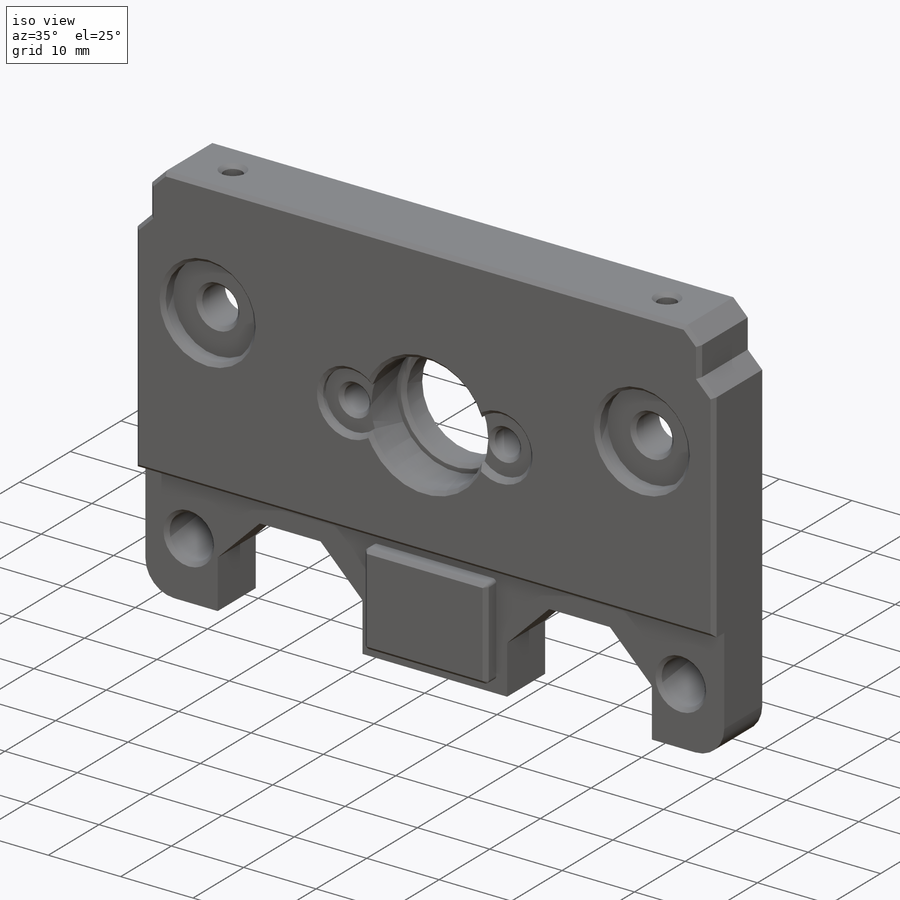
[diagram: iso view]
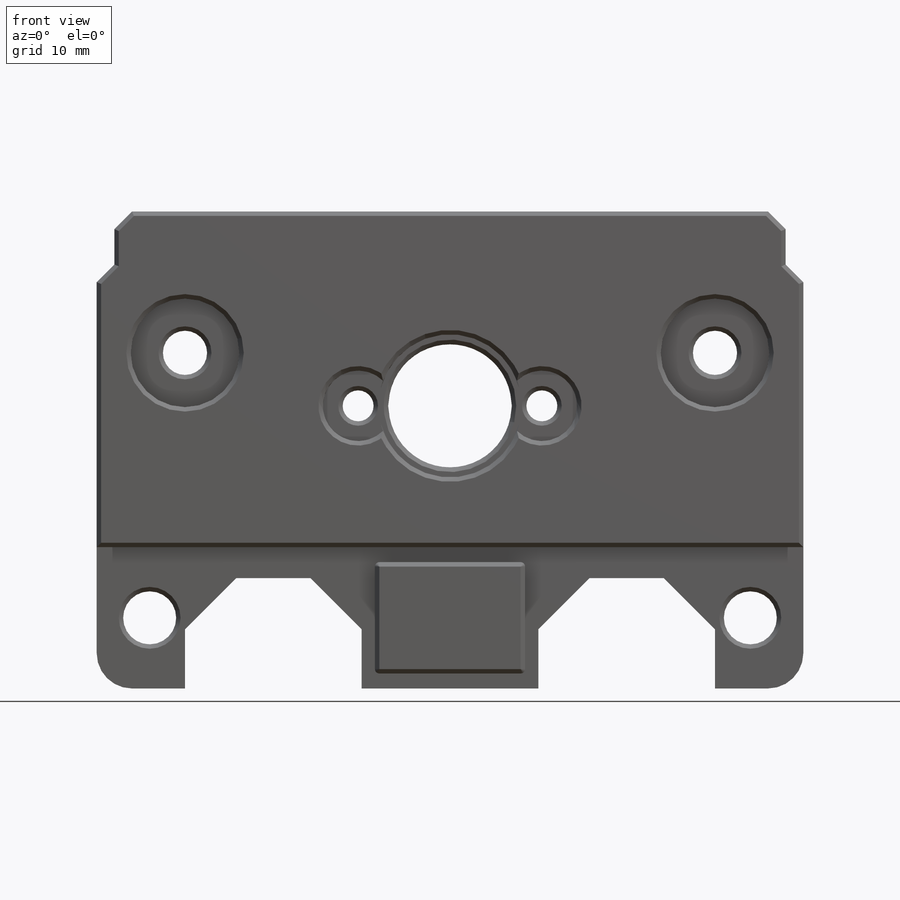
[diagram: front view]
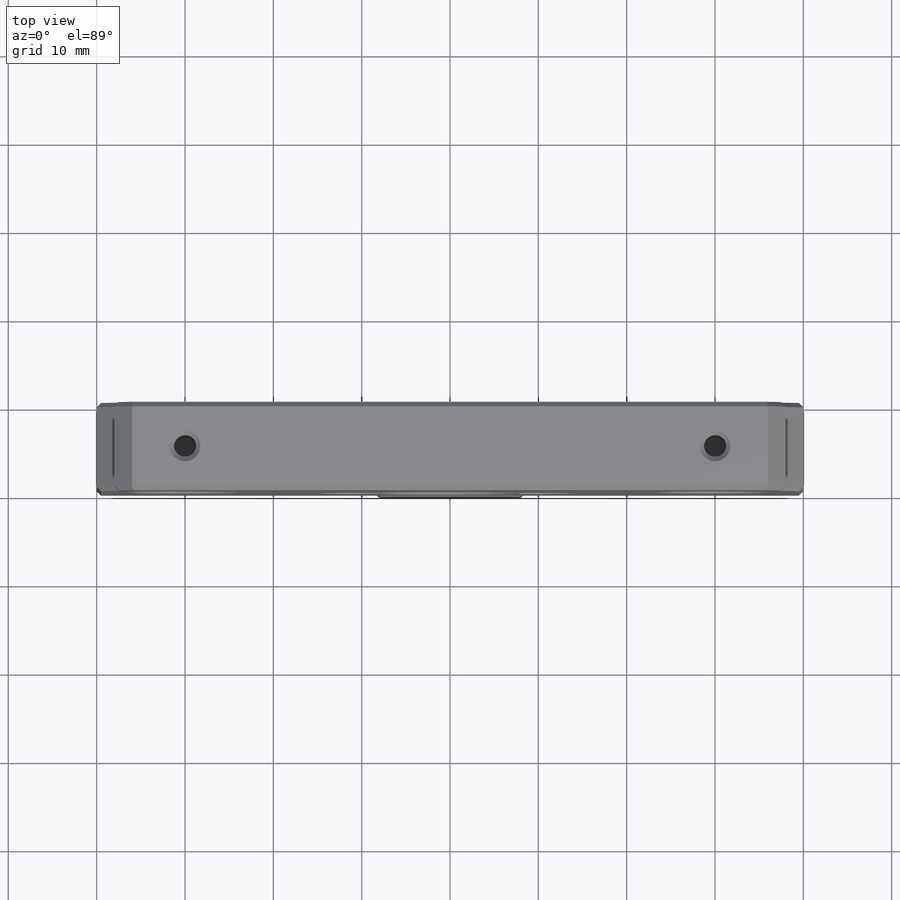
[diagram: top view]
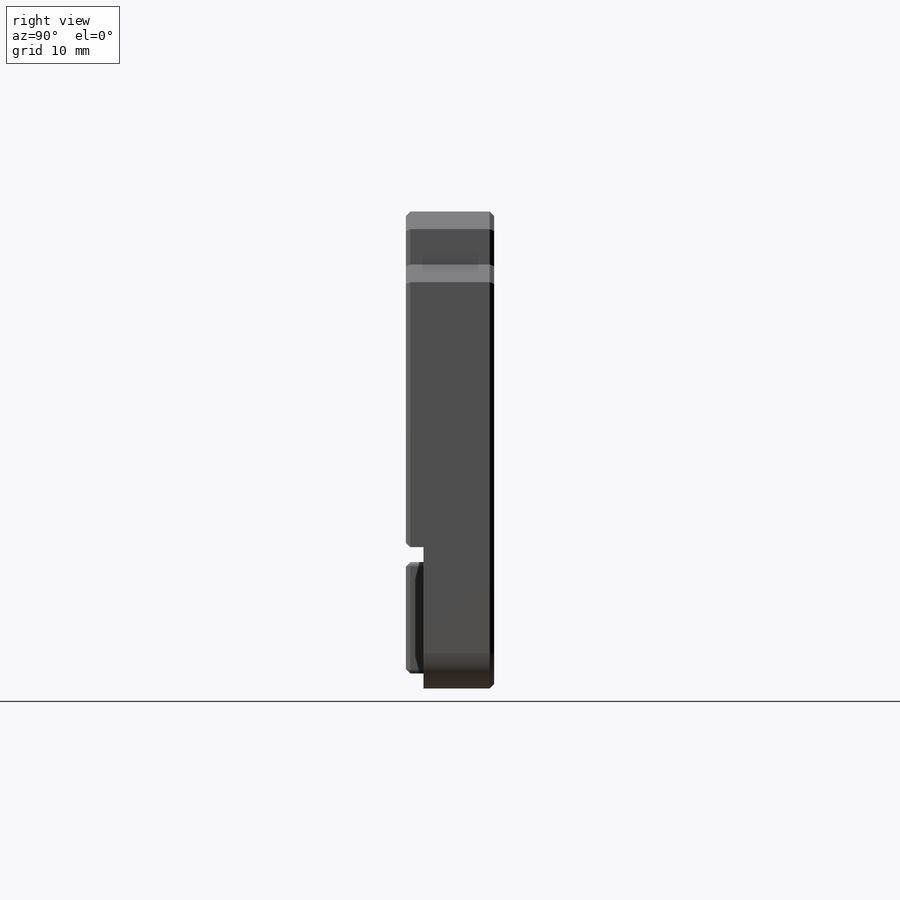
[diagram: right view]
SOLIDWORKS PART (.sldprt)
format: sldprt  version: not decoded by parser v0  size: 613,376 bytes
history: native  units: mm
features: sketch x10, cut_extrude x4, extrude x3, chamfer x3, material x1, fillet x1 (+13 scaffold rows collapsed; 1 parser-record rows omitted)
feature tree (36):
  scaffold x13  (default folders/planes/origin — collapsed)
  material  "6061 Alloy"
  sketch  "Sketch1"  dims[c1.D1=4.0mm c1.D4=16.2mm c1.D5=5.0mm c1.D6=5.0mm c1.D2=16.0mm c1.D3=80.0mm c2.D6=60.0mm c2.D7=10.0mm c2.D8=6.0mm c2.D9=16.0mm c3.D7=22.0mm c3.D10=12.5mm c3.D11=20.0mm c3.D12=10.0mm c3.D13=5.0mm c4.D13=45.0deg c4.D14=5.8mm c4.D15=76.0mm c4.D16=2.0mm c5.D16=45.0deg c5.D17=6.0mm c5.D18=76.0mm]
  extrude  "Boss-Extrude1"  Depth=8mm
  sketch  "Sketch2"  dims[c1.D3=4.0mm c1.D8=12.3mm c1.D9=14.0mm c1.D1=1.7mm c1.D2=1.7mm c1.D4=1.0mm c1.D5=14.5mm c1.D6=2.0mm c1.D7=17.0mm c2.D5=1.7mm c2.D9=12.3mm c2.D6=1.7mm]
  extrude  "Boss-Extrude2"  Depth=2mm
  sketch  "Sketch3"  dims[c1.D1=~5.532108mm c1.D2=~5.532108mm c1.D3=6.0mm c2.D1=8.0mm c2.D2=6.0mm]
  cut_extrude  "Cut-Extrude1"  [1 undecoded]
  chamfer  "Chamfer1"  Distance=2mm Angle=45deg
  sketch  "Sketch4"  dims[D1=14.0mm]
  extrude  "Boss-Extrude3"  Depth=4mm
  sketch  "Sketch5"  dims[D1=7.6mm D2=3.5mm D4=8.0mm D3=1.5mm]
  cut_extrude  "Cut-Extrude2"  Depth=1mm
  sketch  "Sketch6"  dims[D1=3.5mm]
  cut_extrude  "Cut-Extrude3"  [1 undecoded]
  sketch  "Sketch7"  dims[D1=2.5mm D2=60.0mm]
  cut_extrude  "Cut-Extrude4"  Depth=15mm _TNextInd=39 _TElemType=0mm _TCompTag=0mm _TID1=0mm _TAttDefEntBased2=0mm _TElemTag=0mm _TID2=0mm _TSegmType=0mm _TAttDefNameBased2=0mm
  parser-record x1  (decoder bookkeeping rows leaked as tree rows — omitted from the tree; the rows remain in map.json)
  sketch  "Sketch_MAC1-1_LINEAR-002_MILLING"
  sketch  "Stock_LINEAR-002_MILLING"
  sketch  "Sketch8"  dims[c1.D1=4.0mm c1.D2=4.0mm c1.D3=4.0mm c1._TElemType=0.0mm c1._TElemTag=0.0mm c1._TID1=0.0mm c1._TID2=0.0mm c1._TSegmType=0.0mm c2._TElemType=0.0mm c2._TElemTag=0.0mm c2._TID1=0.0mm c2._TID2=0.0mm c2._TSegmType=0.0mm c3._TElemType=0.0mm c3._TElemTag=0.0mm c3._TID1=0.0mm c3._TID2=0.0mm c3._TSegmType=0.0mm c4._TElemType=0.0mm c4._TElemTag=0.0mm c4._TID1=0.0mm c4._TID2=0.0mm c4._TSegmType=0.0mm c5._TElemType=0.0mm c5._TElemTag=0.0mm c5._TID1=0.0mm c5._TID2=0.0mm c5._TSegmType=0.0mm c6._TElemType=0.0mm c6._TElemTag=0.0mm c6._TID1=0.0mm c6._TID2=0.0mm c6._TSegmType=0.0mm c7._TElemType=0.0mm c7._TElemTag=0.0mm c7._TID1=0.0mm c7._TID2=0.0mm c7._TSegmType=0.0mm c8._TElemType=0.0mm c8._TElemTag=0.0mm c8._TID1=0.0mm c8._TID2=0.0mm c8._TSegmType=0.0mm c9._TElemType=0.0mm c9._TElemTag=0.0mm c9._TID1=0.0mm c9._TID2=0.0mm c9._TSegmType=0.0mm c10._TElemType=0.0mm c10._TElemTag=0.0mm c10._TID1=0.0mm c10._TID2=0.0mm c10._TSegmType=0.0mm c11._TElemType=0.0mm c11._TVElType=0.0mm c11._TDbl1=-0.04 c11._TDbl2=-0.016 c11._TDbl3=0.01 c11._TDbl4=0.04 c11._TDbl5=-0.016 c11._TDbl6=0.01 c11._TDbl7=0.0 c11._TDbl8=0.0 c11._TDbl9=0.0 c11._TBool=0.0mm c11._TInt=0.0mm c11._TAttDefVEl=0.0mm c12._TElemType=0.0mm c12._TVElType=0.0mm c12._TDbl1=0.0 c12._TDbl2=0.0 c12._TDbl3=0.0 c12._TDbl4=0.0 c12._TDbl5=0.0 c12._TDbl6=0.0 c12._TDbl7=0.0 c12._TDbl8=0.0 c12._TDbl9=0.0 c12._TBool=0.0mm c12._TInt=0.0mm c13._TElemType=0.0mm c13._TID1=0.0mm c13._TCompTag=47480832000.0mm c14._TElemType=0.0mm c14._TID1=0.0mm c14._TCompTag=47480832000.0mm c15._TElemType=0.0mm c15._TElemTag=0.0mm c15._TID1=0.0mm c15._TID2=0.0mm c15._TSegmType=0.0mm c16._TElemType=0.0mm c16._TElemTag=0.0mm c16._TID1=0.0mm c16._TID2=0.0mm c16._TSegmType=0.0mm c17._TElemType=0.0mm c17._TElemTag=0.0mm c17._TID1=0.0mm c17._TID2=0.0mm c17._TSegmType=0.0mm c18._TElemType=0.0mm c18._TElemTag=0.0mm c18._TID1=0.0mm c18._TID2=0.0mm c18._TSegmType=0.0mm c19._TElemType=0.0mm c19._TID1=0.0mm c19._TCompTag=42786816000.0mm c20._TElemType=0.0mm c20._TID1=0.0mm c20._TCompTag=42786816000.0mm c21._TElemType=0.0mm c21._TID1=0.0mm c21._TCompTag=42786816000.0mm c22._TElemType=0.0mm c22._TID1=0.0mm c22._TCompTag=42786816000.0mm c23._TElemType=0.0mm c23._TID1=0.0mm c23._TCompTag=47480832000.0mm c24._TElemType=0.0mm c24._TID1=0.0mm c24._TCompTag=42786816000.0mm c25._TElemType=0.0mm c25._TID1=0.0mm c25._TCompTag=47480832000.0mm c26._TElemType=0.0mm c26._TID1=0.0mm c26._TCompTag=42786816000.0mm c27._TElemType=0.0mm c27._TID1=0.0mm c27._TCompTag=0.0mm c28._TElemType=0.0mm c28._TID1=0.0mm c28._TCompTag=78102528000.0mm c29._TElemType=0.0mm c29._TID1=0.0mm c29._TCompTag=42786816000.0mm c30._TElemType=0.0mm c30._TID1=0.0mm c30._TCompTag=78102528000.0mm c31._TElemType=0.0mm c31._TID1=0.0mm c31._TCompTag=78102528000.0mm c32._TElemType=0.0mm c32._TID1=0.0mm c32._TCompTag=42786816000.0mm c33._TElemType=0.0mm c33._TID1=0.0mm c33._TCompTag=78102528000.0mm c34._TElemType=0.0mm c34._TID1=0.0mm c34._TCompTag=78102528000.0mm c35._TElemType=0.0mm c35._TID1=0.0mm c35._TCompTag=42786816000.0mm c36._TElemType=0.0mm c36._TID1=0.0mm c36._TCompTag=78102528000.0mm c37._TElemType=0.0mm c37._TID1=0.0mm c37._TCompTag=78102528000.0mm c38._TElemType=0.0mm c38._TID1=0.0mm c38._TCompTag=78102528000.0mm c39._TElemType=0.0mm c39._TID1=0.0mm c39._TCompTag=78102528000.0mm c40._TElemType=0.0mm c40._TID1=0.0mm c40._TCompTag=78102528000.0mm c41._TElemType=0.0mm c41._TID1=0.0mm c41._TCompTag=78102528000.0mm c42._TElemType=0.0mm c42._TID1=0.0mm c42._TCompTag=42786816000.0mm]
  fillet  "Fillet1"  Radius=0.5mm
  chamfer  "Chamfer2"  Distance=0.5mm Angle=45deg
  chamfer  "Chamfer3"  Distance=3mm Angle=45deg
decode coverage: 17 of 21 modeling features carry decoded parameters
note: ~ marks probable driven/reference dimensions
note: 2 parameter values undecoded
note: suppression state not decoded; provenance and decode notes live in map.json
